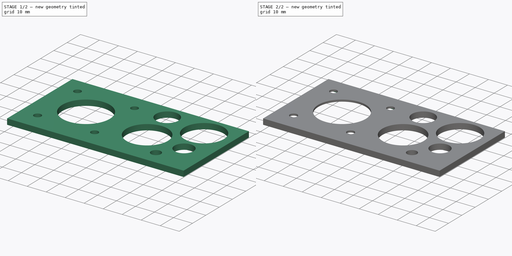
[diagram: build sequence overview — one tinted view per stage of 2, left to right]
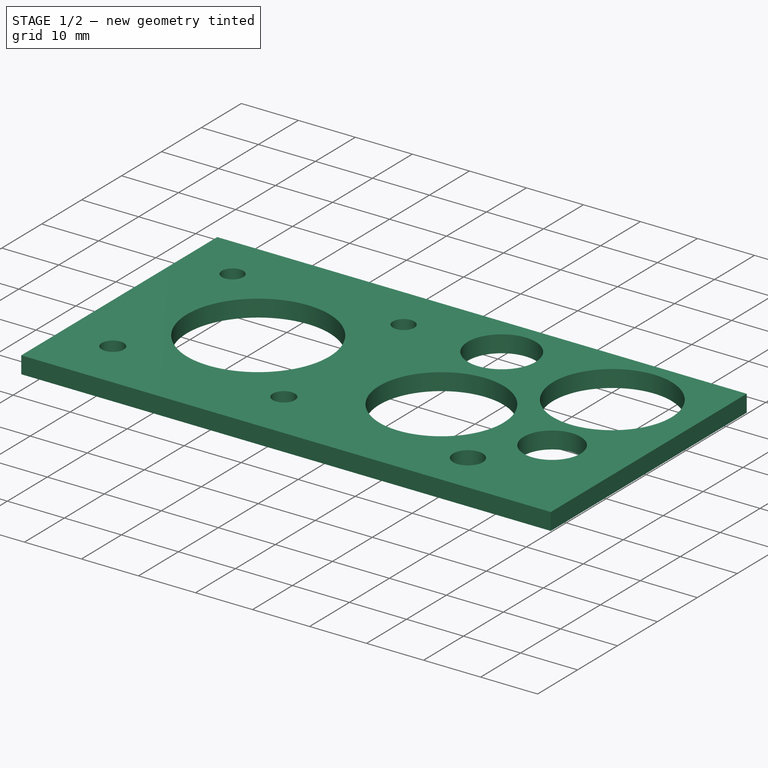
[diagram: stage 1 of 2 — iso view after this stage's code; geometry added in this stage tinted green]
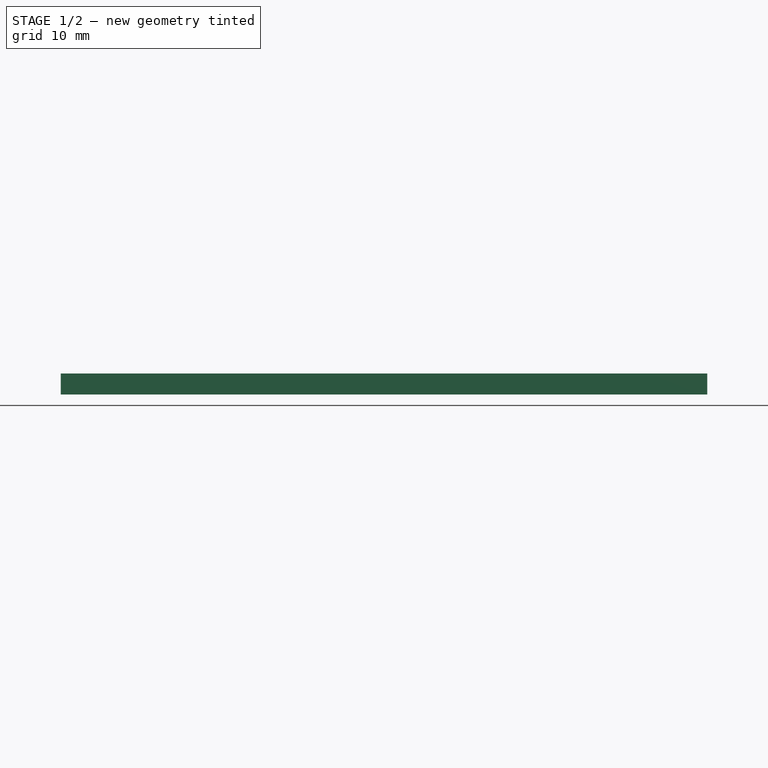
[diagram: stage 1 of 2 — front view after this stage's code; geometry added in this stage tinted green]
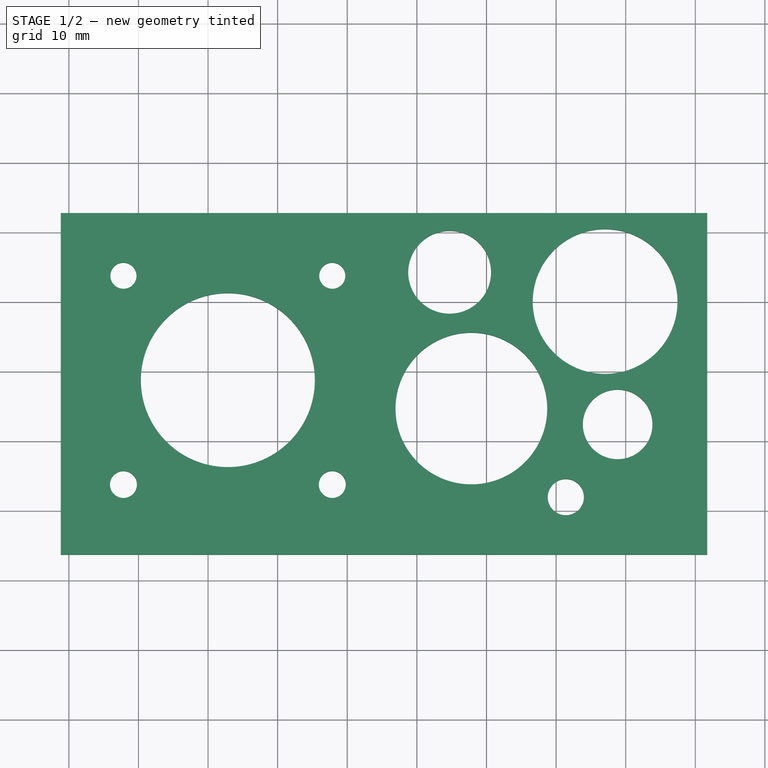
[diagram: stage 1 of 2 — top view after this stage's code; geometry added in this stage tinted green]
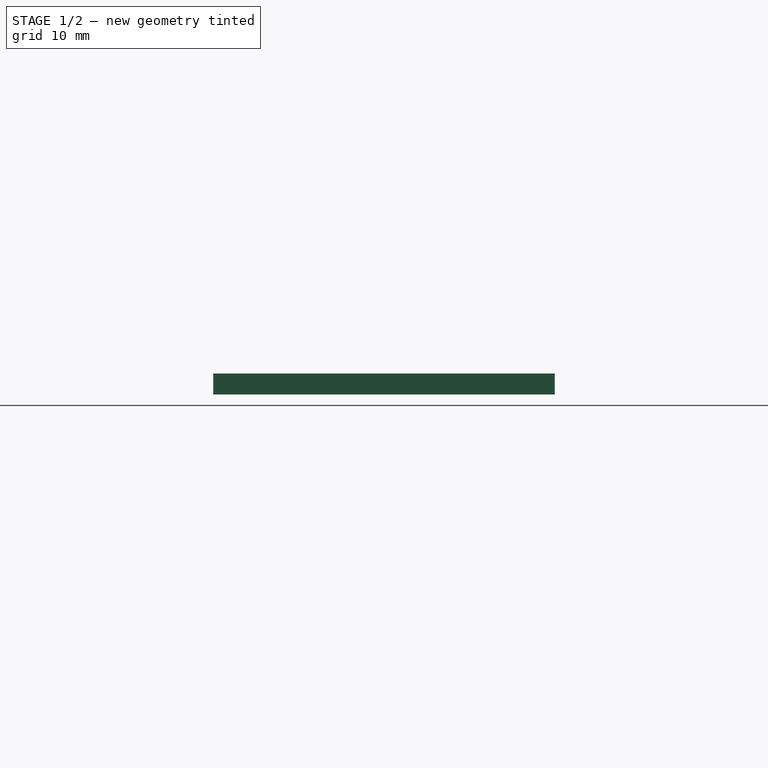
[diagram: stage 1 of 2 — right view after this stage's code; geometry added in this stage tinted green]
FCSTD DOCUMENT  (FreeCAD 0.18R4 (GitTag))
Label: test-gabari
License: All rights reserved
LicenseURL: http://en.wikipedia.org/wiki/All_rights_reserved
objects: Sketcher::SketchObject×3, PartDesign::Pocket×2, PartDesign::Pad×1, PartDesign::Body×1
note: 10 computed .brp shape members not serialized (recipe doc carries the construction recipe); baked Part::Feature solids carry a one-line shape summary decoded from their .brp

FEATURE [Sketcher::SketchObject] Sketch
  MapMode = 5
  Support = -> [XY_Plane]
  sketch-geometry (4):
    g0: LineSegment StartX=-51.1562 StartY=32.7791 StartZ=0 EndX=41.7103 EndY=32.7791 EndZ=0
    g1: LineSegment StartX=41.7103 StartY=32.7791 StartZ=0 EndX=41.7103 EndY=-16.2973 EndZ=0
    g2: LineSegment StartX=41.7103 StartY=-16.2973 StartZ=0 EndX=-51.1562 EndY=-16.2973 EndZ=0
    g3: LineSegment StartX=-51.1562 StartY=-16.2973 StartZ=0 EndX=-51.1562 EndY=32.7791 EndZ=0
  constraints (8):
    c: Coincident(g0,g1)
    c: Coincident(g1,g2)
    c: Coincident(g2,g3)
    c: Coincident(g3,g0)
    c: Horizontal(g0)
    c: Horizontal(g2)
    c: Vertical(g1)
    c: Vertical(g3)
FEATURE [PartDesign::Pad] Pad
  Length = 3
  Length2 = 100
  Profile = -> Sketch
  Type = 0
FEATURE [Sketcher::SketchObject] Sketch001
  ExternalGeometry = -> [Pad]
  MapMode = 5
  Placement = pos=(0,0,3) rot=(0,0,1;0rad)
  Support = -> [Pad]
  sketch-geometry (14):
    g0: LineSegment [constr] StartX=-48.1562 StartY=29.7791 StartZ=0 EndX=-6.15618 EndY=29.7791 EndZ=0
    g1: LineSegment [constr] StartX=-6.15618 StartY=29.7791 StartZ=0 EndX=-6.15618 EndY=-12.2209 EndZ=0
    g2: LineSegment [constr] StartX=-6.15618 StartY=-12.2209 StartZ=0 EndX=-48.1562 EndY=-12.2209 EndZ=0
    g3: LineSegment [constr] StartX=-48.1562 StartY=-12.2209 StartZ=0 EndX=-48.1562 EndY=29.7791 EndZ=0
    g4: Circle CenterX=-42.1562 CenterY=23.7791 CenterZ=0 NormalX=0 NormalY=0 NormalZ=1 AngleXU=0 Radius=1.87588
    g5: Circle CenterX=-12.1562 CenterY=23.7791 CenterZ=0 NormalX=0 NormalY=0 NormalZ=1 AngleXU=0 Radius=1.87588
    g6: Circle CenterX=-12.1562 CenterY=-6.22086 CenterZ=0 NormalX=0 NormalY=0 NormalZ=1 AngleXU=0 Radius=1.9364
    g7: Circle CenterX=-42.1562 CenterY=-6.22086 CenterZ=0 NormalX=0 NormalY=0 NormalZ=1 AngleXU=0 Radius=1.9364
    g8: Circle CenterX=-27.1562 CenterY=8.77914 CenterZ=0 NormalX=0 NormalY=0 NormalZ=1 AngleXU=0 Radius=12.5
    g9: Circle CenterX=4.70417 CenterY=24.273 CenterZ=0 NormalX=0 NormalY=0 NormalZ=1 AngleXU=0 Radius=5.95
    g10: Circle CenterX=28.8424 CenterY=2.41649 CenterZ=0 NormalX=0 NormalY=0 NormalZ=1 AngleXU=0 Radius=5
    g11: Circle CenterX=27.041 CenterY=20.0698 CenterZ=0 NormalX=0 NormalY=0 NormalZ=1 AngleXU=0 Radius=10.4
    g12: Circle CenterX=7.82651 CenterY=4.69821 CenterZ=0 NormalX=0 NormalY=0 NormalZ=1 AngleXU=0 Radius=10.9
    g13: Circle CenterX=21.3968 CenterY=-8.0314 CenterZ=0 NormalX=0 NormalY=0 NormalZ=1 AngleXU=0 Radius=2.6
  constraints (29):
    c: Coincident(g0,g1)
    c: Coincident(g1,g2)
    c: Coincident(g2,g3)
    c: Coincident(g3,g0)
    c: Horizontal(g0)
    c: Horizontal(g2)
    c: Vertical(g1)
    c: Vertical(g3)
    c: DistanceY(g3,g3) = 42
    c: DistanceX(g0,g0) = 42
    c: Equal(g4,g5)
    c: Equal(g6,g7)
    c: DistanceX(g0,g4) = 6
    c: DistanceX(g5,g0) = 6
    c: DistanceX(g6,g1) = 6
    c: DistanceX(g2,g7) = 6
    c: DistanceY(g4,g0) = 6
    c: DistanceY(g2,g7) = 6
    c: DistanceY(g1,g6) = 6
    c: DistanceY(g5,g0) = 6
    c: Symmetric(g0,g1,g8)
    c: Diameter(g8) = 25
    c: Diameter(g9) = 11.9
    c: Diameter(g10) = 10
    c: Diameter(g11) = 20.8
    c: Diameter(g12) = 21.8
    c: Diameter(g13) = 5.2
    c: DistanceY(g0,g-3) = 3
    c: DistanceX(g-3,g0) = 3
FEATURE [PartDesign::Pocket] Pocket
  BaseFeature = -> Pad
  Length = 5
  Length2 = 100
  Profile = -> Sketch001
  Type = 0
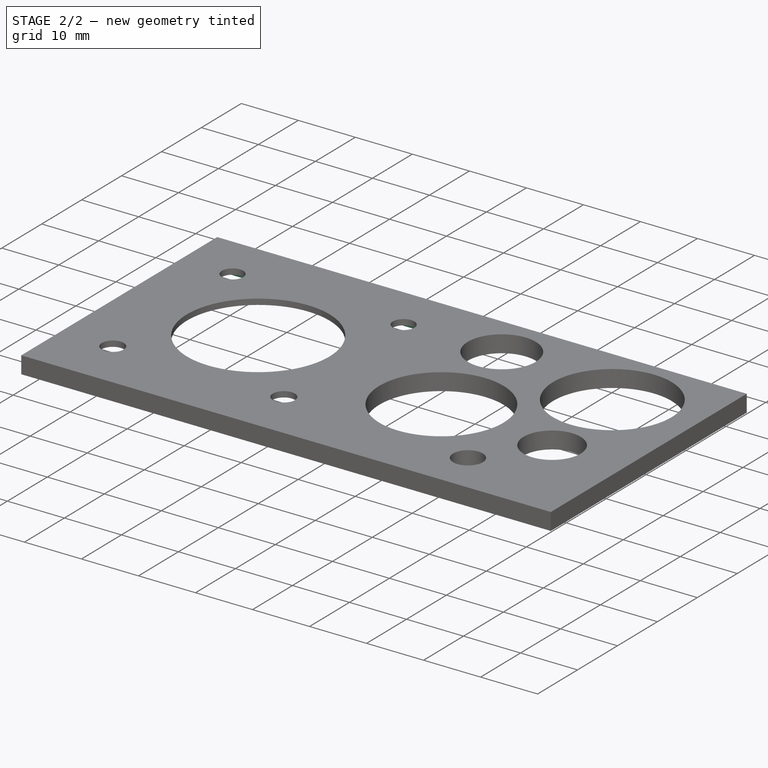
[diagram: stage 2 of 2 — iso view after this stage's code; geometry added in this stage tinted green]
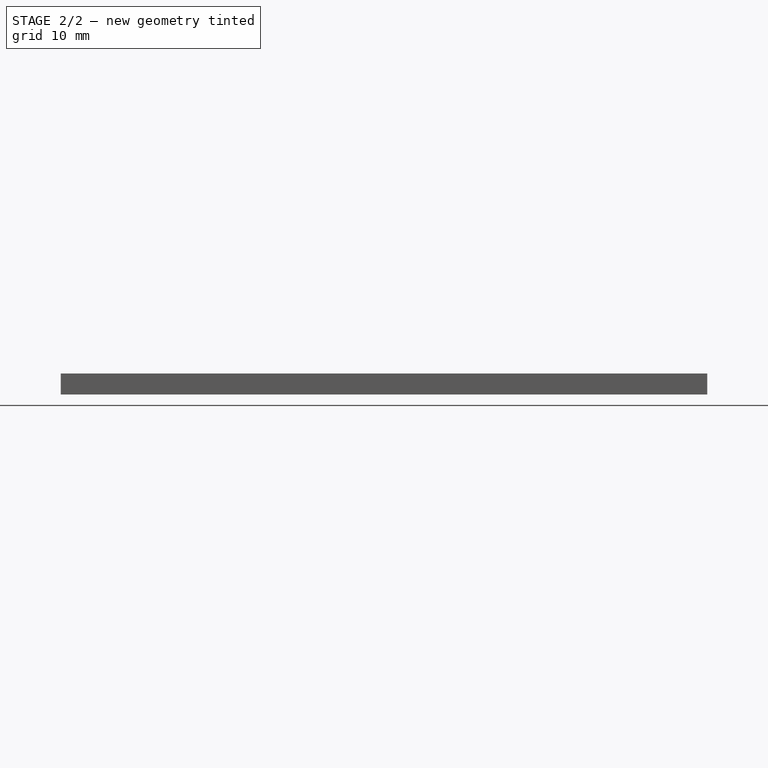
[diagram: stage 2 of 2 — front view after this stage's code; geometry added in this stage tinted green]
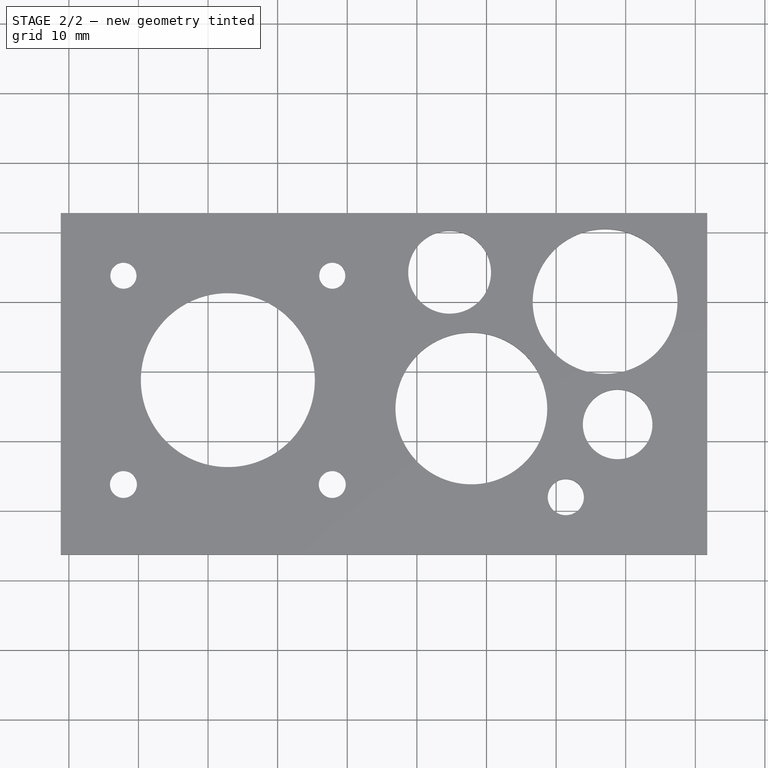
[diagram: stage 2 of 2 — top view after this stage's code; geometry added in this stage tinted green]
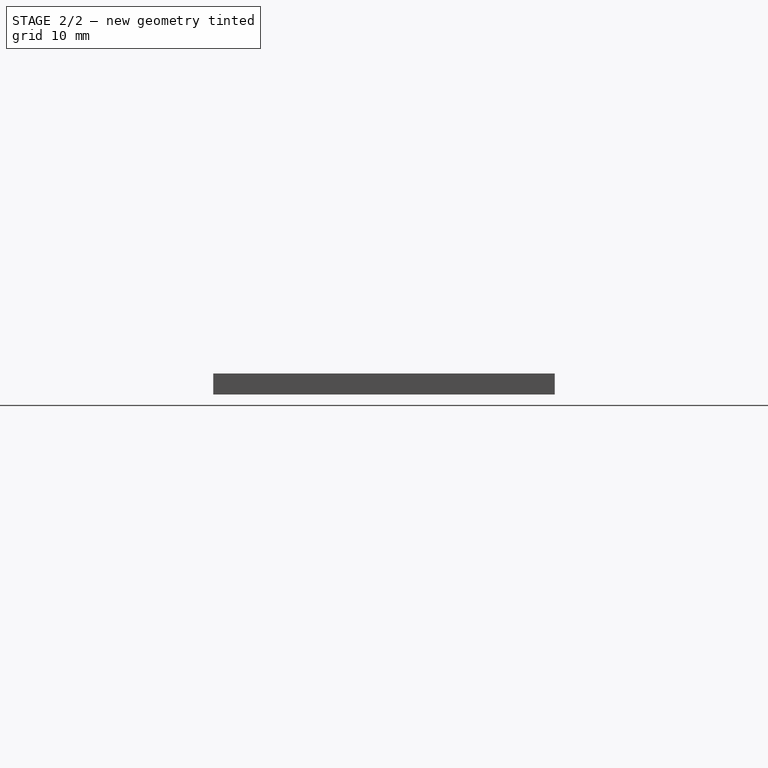
[diagram: stage 2 of 2 — right view after this stage's code; geometry added in this stage tinted green]
FEATURE [Sketcher::SketchObject] Sketch002
  ExternalGeometry = -> [Sketch]
  MapMode = 5
  Placement = pos=(0,0,0) rot=(1,0,0;3.14159rad)
  Support = -> [Pocket]
  sketch-geometry (4):
    g0: LineSegment StartX=-48.1562 StartY=13.2973 StartZ=0 EndX=-6.15618 EndY=13.2973 EndZ=0
    g1: LineSegment StartX=-6.15618 StartY=13.2973 StartZ=0 EndX=-6.15618 EndY=-28.7027 EndZ=0
    g2: LineSegment StartX=-6.15618 StartY=-28.7027 StartZ=0 EndX=-48.1562 EndY=-28.7027 EndZ=0
    g3: LineSegment StartX=-48.1562 StartY=-28.7027 StartZ=0 EndX=-48.1562 EndY=13.2973 EndZ=0
  constraints (12):
    c: Coincident(g0,g1)
    c: Coincident(g1,g2)
    c: Coincident(g2,g3)
    c: Coincident(g3,g0)
    c: Horizontal(g0)
    c: Horizontal(g2)
    c: Vertical(g1)
    c: Vertical(g3)
    c: DistanceY(g0,g-3) = 3
    c: DistanceX(g-3,g0) = 3
    c: DistanceX(g0,g0) = 42
    c: DistanceY(g1,g1) = 42
FEATURE [PartDesign::Pocket] Pocket001
  BaseFeature = -> Pocket
  Length = 2
  Length2 = 100
  Profile = -> Sketch002
  Type = 0
FEATURE [PartDesign::Body] Body
  Group = -> [Sketch,Pad,Sketch001,Pocket,Sketch002,Pocket001]
  Origin = -> Origin
  Tip = -> Pocket001
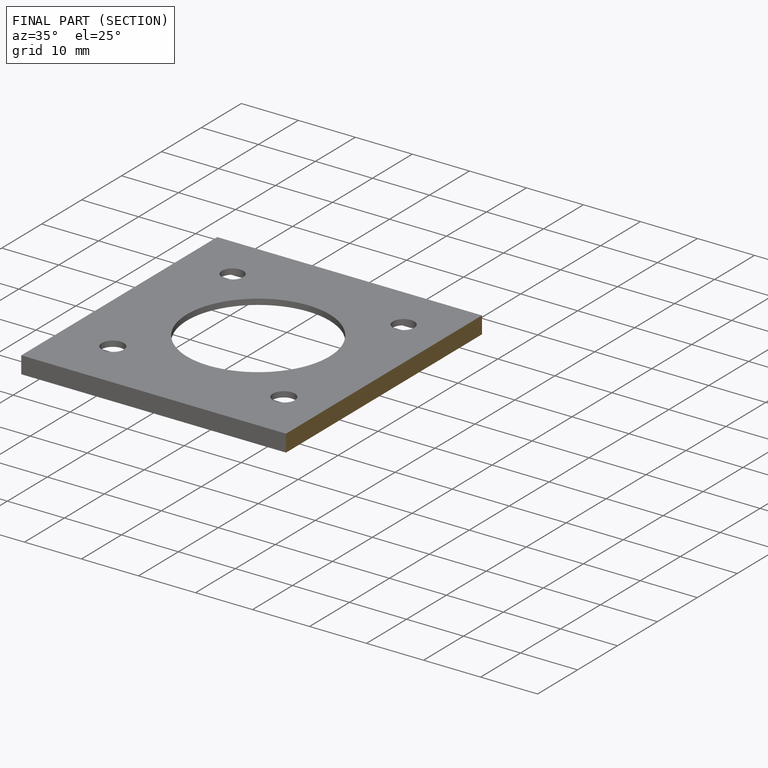
[diagram: finished part — half-section view (interior)]
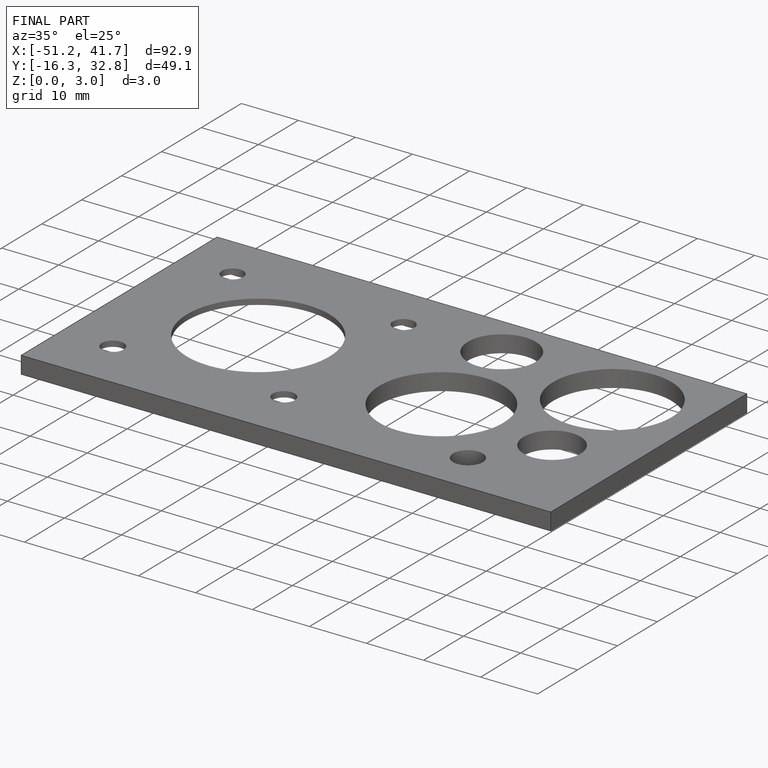
[diagram: finished part — iso view with bounding-box wireframe]
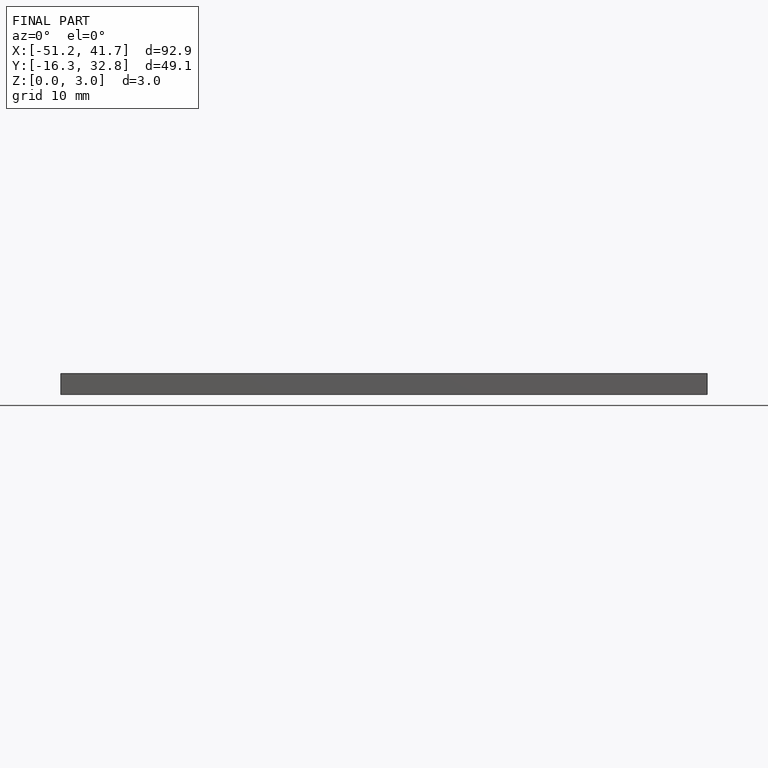
[diagram: finished part — front view with bounding-box wireframe]
